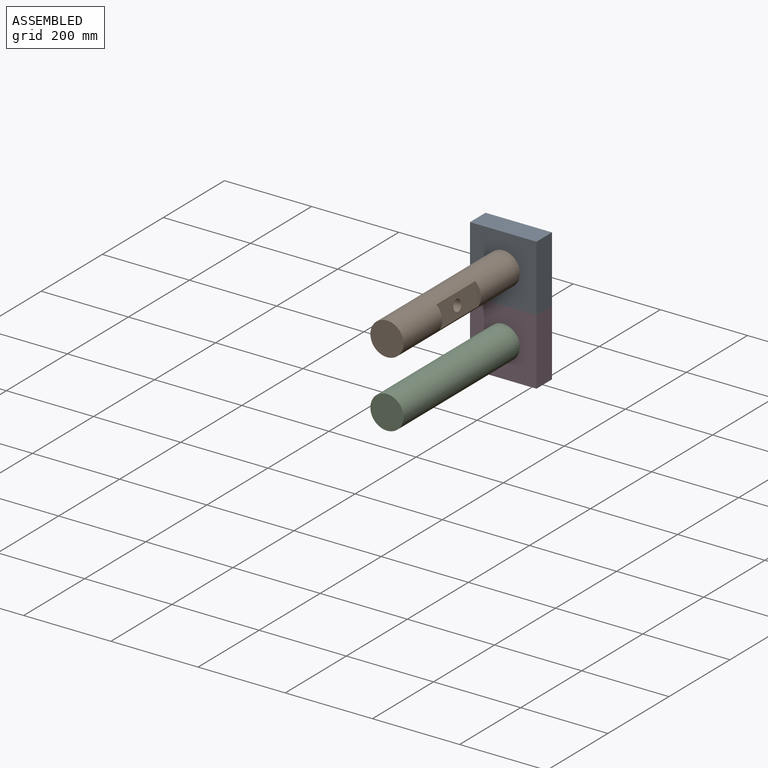
[diagram: assembled view]
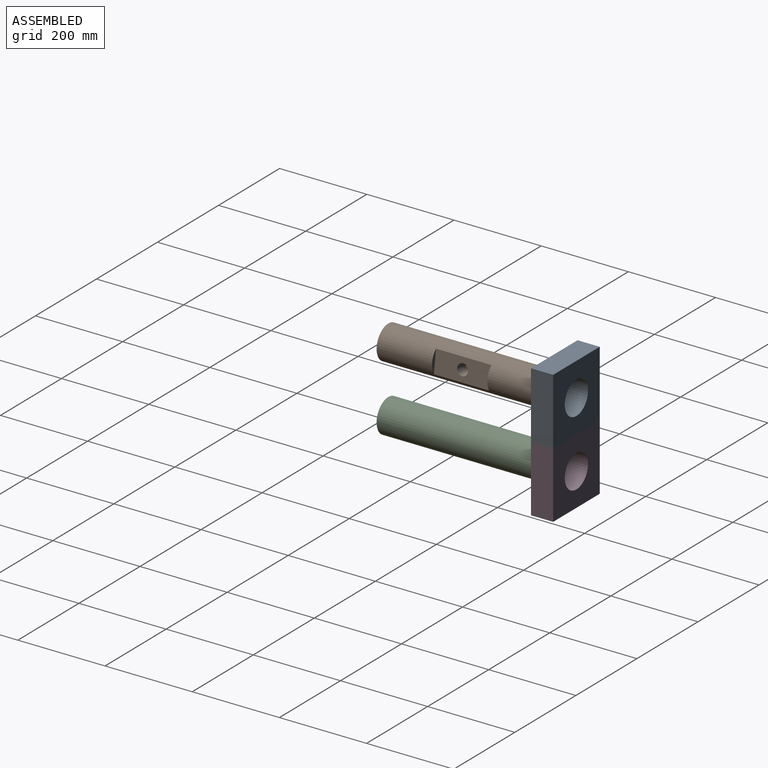
[diagram: assembled view, second angle]
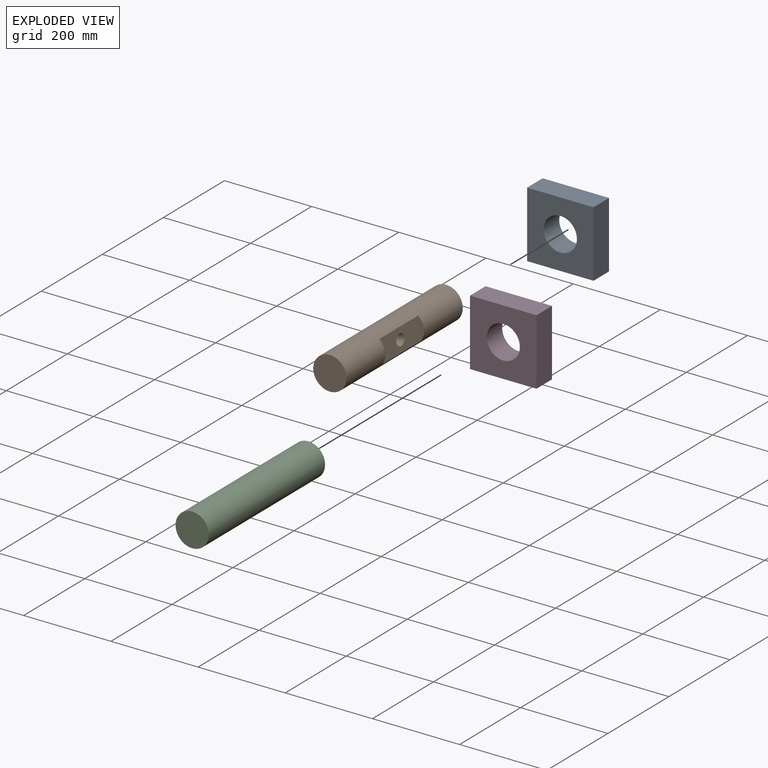
[diagram: exploded view]
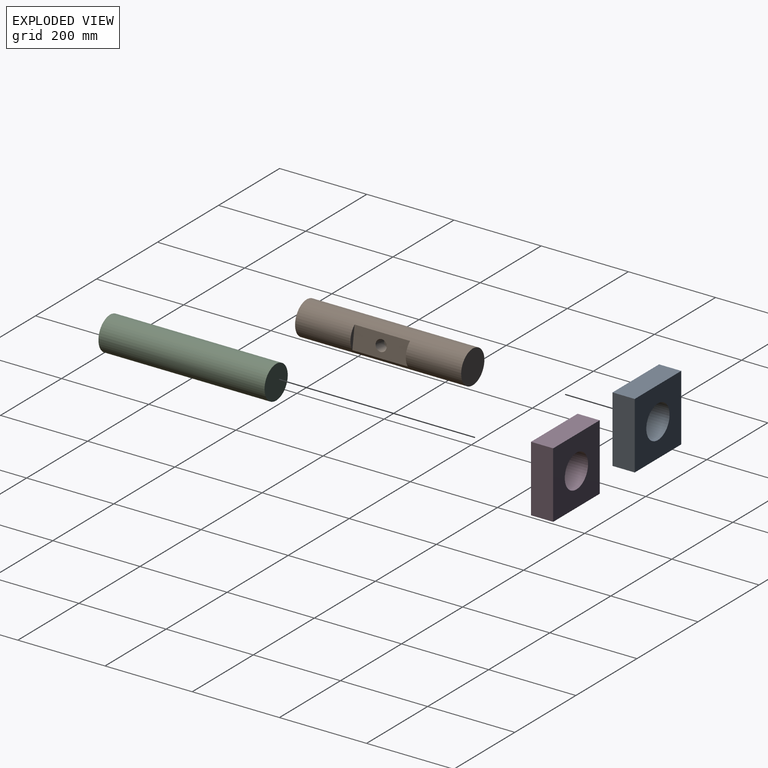
[diagram: exploded view, second angle]
ASSEMBLY  parts=4 mates=3
PART A: 7 faces, bbox 152.4x50.8x152.4 mm
  f0: plane 152.4x50.8mm, normal (-1,0,0), area 7741.9mm2, adj f1,f3,f5,f6
  f1: plane 152.4x50.8mm, normal (0,0,-1), area 7741.9mm2, adj f0,f2,f5,f6
  f2: plane 152.4x50.8mm, normal (1,0,0), area 7741.9mm2, adj f1,f3,f5,f6
  f3: plane 152.4x50.8mm, normal (0,0,1), area 7741.9mm2, adj f0,f2,f5,f6
  f4: cylinder r=38.1mm len=76.2mm, axis (0,1,0), area 12161mm2, adj f5,f6
  f5: plane 152.4x152.4mm, normal (0,-1,0), area 18665.4mm2, adj f0,f1,f2,f3,f4
  f6: plane 152.4x152.4mm, normal (0,1,0), area 18665.4mm2, adj f0,f1,f2,f3,f4
PART B: 8 faces, bbox 76.2x381x76.2 mm
  f0: cylinder r=38.1mm len=381mm, axis (0,1,0), area 84145.5mm2, adj f1,f2,f3,f4,f5
  f1: plane 127x50.8mm, normal (0,0,1), area 5944.9mm2, adj f0,f3,f5,f7
  f2: plane 76.2x76.2mm, normal (0,1,0), area 4560.4mm2, adj f0
  f3: plane 50.8x9.7mm, normal (0,-1,0), area 338mm2, adj f0,f1
  f4: plane 76.2x76.2mm, normal (0,-1,0), area 4560.4mm2, adj f0
  f5: plane 50.8x9.7mm, normal (0,1,0), area 338mm2, adj f0,f1
  f6: plane 25.4x25.4mm, normal (0,0,1), area 506.7mm2, adj f7
  f7: cylinder r=12.7mm len=28.4mm, axis (0,0,-1), area 2266.1mm2, adj f1,f6
PART C: same geometry as B
PART D: same geometry as A
PLACE A t=(-21.12,-33.55,82.27)mm
PLACE B rot(axis=(0,1,0),81.8deg) t=(-21.12,-84.35,82.27)mm
PLACE C rot(axis=(0,-1,0),81.8deg) t=(-21.12,-84.35,-70.13)mm
PLACE D t=(-21.12,-33.55,-70.13)mm fixed
MATE revolute D.f4 <-> C.f0  axis (0,-1,0) through (-21.12,-84.35,-70.13)mm
MATE revolute B.f0 <-> A.f4  axis (0,1,0) through (-21.12,-84.35,82.27)mm
MATE fastened A.f1 <-> D.f3  axis (0,0,-1) through (-21.12,-58.95,6.07)mm
